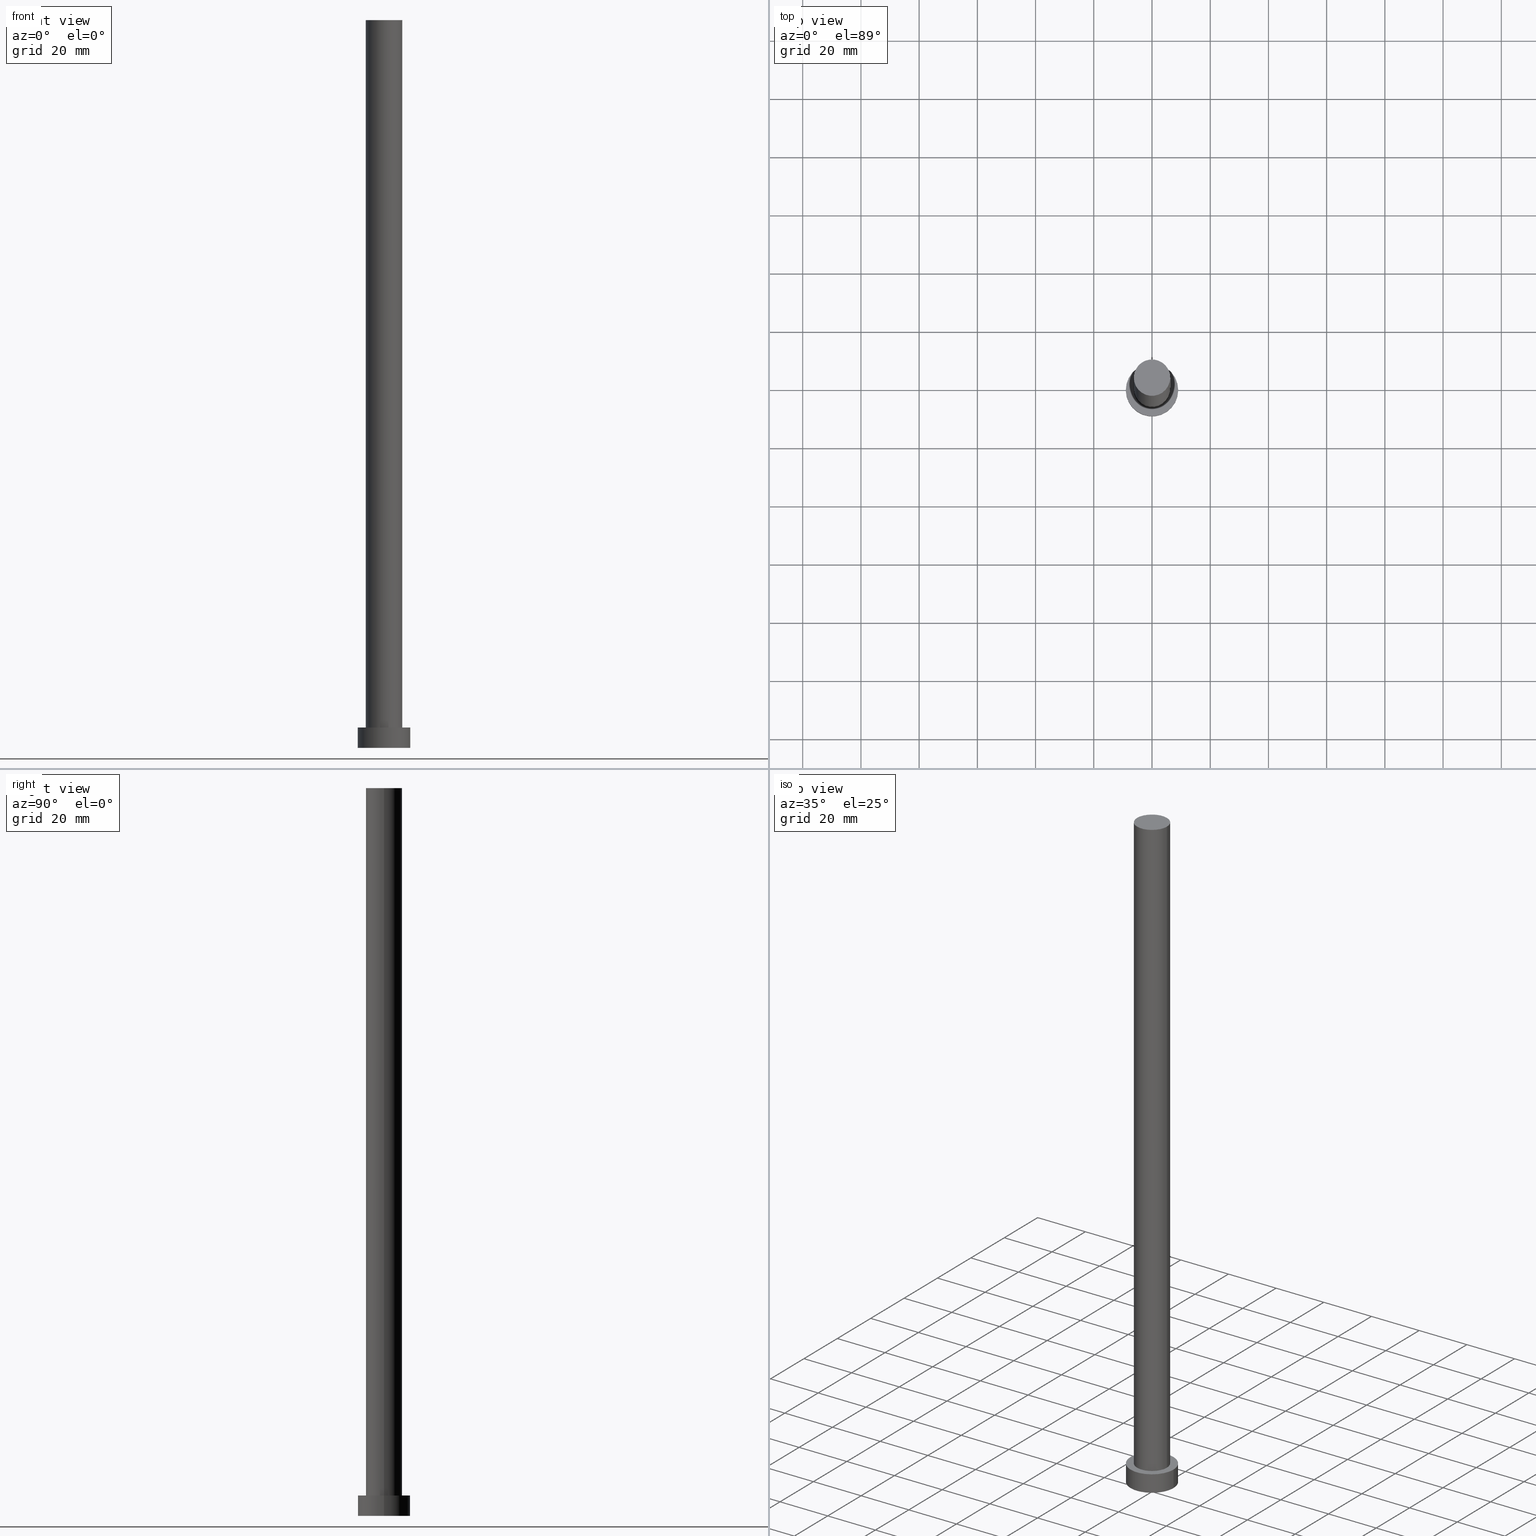
[diagram: canonical four-view strip — front | top / right | iso, engineering-drawing reading convention]
A machine part, canonical four-view strip (front | top / right | iso — engineering-drawing reading convention). The complete STEP part file that produces these views, byte-faithful:
ISO-10303-21;
HEADER;
FILE_DESCRIPTION (( 'STEP AP203' ),
    '1' );
FILE_NAME ('368a.STEP',
    '2026-02-06T12:36:08',
    ( '' ),
    ( '' ),
    'SwSTEP 2.0',
    'SolidWorks 2019',
    '' );
FILE_SCHEMA (( 'CONFIG_CONTROL_DESIGN' ));
ENDSEC;

DATA;
#1 = UNCERTAINTY_MEASURE_WITH_UNIT (LENGTH_MEASURE( 1.000000000000000082E-05 ), #11, 'distance_accuracy_value', 'NONE');
#2 = DIRECTION ( 'NONE',  ( 1.000000000000000000, 0.000000000000000000, -0.000000000000000000 ) ) ;
#3 = CIRCLE ( 'NONE', #203, 6.250000000000000000 ) ;
#4 = CARTESIAN_POINT ( 'NONE',  ( 0.000000000000000000, 0.000000000000000000, 250.0000000000000000 ) ) ;
#5 = PERSON_AND_ORGANIZATION_ROLE ( 'design_owner' ) ;
#6 = CIRCLE ( 'NONE', #246, 6.250000000000000000 ) ;
#7 = DIRECTION ( 'NONE',  ( 0.000000000000000000, 0.000000000000000000, 1.000000000000000000 ) ) ;
#8 = DATE_AND_TIME ( #52, #231 ) ;
#9 = AXIS2_PLACEMENT_3D ( 'NONE', #115, #99, #237 ) ;
#10 = DIRECTION ( 'NONE',  ( -0.000000000000000000, -0.000000000000000000, -1.000000000000000000 ) ) ;
#11 =( LENGTH_UNIT ( ) NAMED_UNIT ( * ) SI_UNIT ( .MILLI., .METRE. ) );
#12 = CARTESIAN_POINT ( 'NONE',  ( 0.000000000000000000, 0.000000000000000000, 7.000000000000000000 ) ) ;
#13 = VERTEX_POINT ( 'NONE', #150 ) ;
#14 = VERTEX_POINT ( 'NONE', #46 ) ;
#15 = COORDINATED_UNIVERSAL_TIME_OFFSET ( 1, 0, .AHEAD. ) ;
#16 = LOCAL_TIME ( 13, 36, 8.000000000000000000, #133 ) ;
#17 = COORDINATED_UNIVERSAL_TIME_OFFSET ( 1, 0, .AHEAD. ) ;
#18 = DIRECTION ( 'NONE',  ( -0.000000000000000000, -0.000000000000000000, -1.000000000000000000 ) ) ;
#19 = ORIENTED_EDGE ( 'NONE', *, *, #202, .F. ) ;
#20 = ADVANCED_FACE ( 'NONE', ( #24 ), #172, .T. ) ;
#21 = ORIENTED_EDGE ( 'NONE', *, *, #223, .F. ) ;
#22 = VECTOR ( 'NONE', #73, 1000.000000000000000 ) ;
#23 = CARTESIAN_POINT ( 'NONE',  ( 0.000000000000000000, 0.000000000000000000, 7.000000000000000000 ) ) ;
#24 = FACE_OUTER_BOUND ( 'NONE', #112, .T. ) ;
#25 = CIRCLE ( 'NONE', #60, 9.000000000000000000 ) ;
#26 = CC_DESIGN_PERSON_AND_ORGANIZATION_ASSIGNMENT ( #228, #113, ( #119 ) ) ;
#27 = ADVANCED_BREP_SHAPE_REPRESENTATION ( '368a', ( #111, #243 ), #198 ) ;
#28 = CIRCLE ( 'NONE', #189, 6.250000000000000000 ) ;
#29 = ADVANCED_FACE ( 'NONE', ( #118 ), #101, .T. ) ;
#30 = PRODUCT_DEFINITION_SHAPE ( 'NONE', 'NONE',  #196 ) ;
#31 = APPLICATION_PROTOCOL_DEFINITION ( 'international standard', 'config_control_design', 1994, #138 ) ;
#32 = CC_DESIGN_APPROVAL ( #53, ( #196 ) ) ;
#33 = ORIENTED_EDGE ( 'NONE', *, *, #181, .T. ) ;
#34 = APPROVAL_STATUS ( 'not_yet_approved' ) ;
#35 = EDGE_CURVE ( 'NONE', #108, #98, #28, .T. ) ;
#36 = AXIS2_PLACEMENT_3D ( 'NONE', #62, #130, #2 ) ;
#37 = EDGE_LOOP ( 'NONE', ( #21, #149, #56, #33 ) ) ;
#38 = APPROVAL_DATE_TIME ( #144, #222 ) ;
#39 = EDGE_LOOP ( 'NONE', ( #248, #245 ) ) ;
#40 = CYLINDRICAL_SURFACE ( 'NONE', #9, 6.250000000000000000 ) ;
#41 = AXIS2_PLACEMENT_3D ( 'NONE', #124, #188, #229 ) ;
#42 = VECTOR ( 'NONE', #249, 1000.000000000000000 ) ;
#43 = DIRECTION ( 'NONE',  ( 1.000000000000000000, 0.000000000000000000, 0.000000000000000000 ) ) ;
#44 = DIRECTION ( 'NONE',  ( 1.000000000000000000, 0.000000000000000000, 0.000000000000000000 ) ) ;
#45 = PERSON_AND_ORGANIZATION_ROLE ( 'creator' ) ;
#46 = CARTESIAN_POINT ( 'NONE',  ( 9.000000000000000000, 1.102182119232617714E-15, 7.000000000000000000 ) ) ;
#47 = APPROVAL_STATUS ( 'not_yet_approved' ) ;
#48 = CIRCLE ( 'NONE', #134, 6.250000000000000000 ) ;
#49 = CARTESIAN_POINT ( 'NONE',  ( 0.000000000000000000, 0.000000000000000000, 0.000000000000000000 ) ) ;
#50 = ADVANCED_FACE ( 'NONE', ( #67, #253 ), #84, .T. ) ;
#51 = CC_DESIGN_SECURITY_CLASSIFICATION ( #64, ( #119 ) ) ;
#52 = CALENDAR_DATE ( 2026, 6, 2 ) ;
#53 = APPROVAL ( #102, 'NEUR�EN�' ) ;
#54 = CARTESIAN_POINT ( 'NONE',  ( 6.250000000000000000, 7.654042494670957606E-16, 7.000000000000000000 ) ) ;
#55 = ORIENTED_EDGE ( 'NONE', *, *, #141, .T. ) ;
#56 = ORIENTED_EDGE ( 'NONE', *, *, #148, .T. ) ;
#57 = ORIENTED_EDGE ( 'NONE', *, *, #35, .T. ) ;
#58 = PERSON_AND_ORGANIZATION ( #159, #227 ) ;
#59 = CARTESIAN_POINT ( 'NONE',  ( 0.000000000000000000, 0.000000000000000000, 7.000000000000000000 ) ) ;
#60 = AXIS2_PLACEMENT_3D ( 'NONE', #23, #195, #194 ) ;
#61 = DIRECTION ( 'NONE',  ( -1.000000000000000000, 0.000000000000000000, 0.000000000000000000 ) ) ;
#62 = CARTESIAN_POINT ( 'NONE',  ( 0.000000000000000000, 0.000000000000000000, 7.000000000000000000 ) ) ;
#63 = DIRECTION ( 'NONE',  ( 0.000000000000000000, 0.000000000000000000, 1.000000000000000000 ) ) ;
#64 = SECURITY_CLASSIFICATION ( '', '', #212 ) ;
#65 = AXIS2_PLACEMENT_3D ( 'NONE', #117, #192, #43 ) ;
#66 = CARTESIAN_POINT ( 'NONE',  ( 0.000000000000000000, 0.000000000000000000, 0.000000000000000000 ) ) ;
#67 = FACE_BOUND ( 'NONE', #210, .T. ) ;
#68 = CALENDAR_DATE ( 2026, 6, 2 ) ;
#69 = EDGE_CURVE ( 'NONE', #233, #171, #173, .T. ) ;
#70 = APPLICATION_PROTOCOL_DEFINITION ( 'international standard', 'config_control_design', 1994, #177 ) ;
#71 = APPROVAL_PERSON_ORGANIZATION ( #221, #53, #120 ) ;
#72 = PLANE ( 'NONE',  #41 ) ;
#73 = DIRECTION ( 'NONE',  ( -0.000000000000000000, -0.000000000000000000, -1.000000000000000000 ) ) ;
#74 = ORIENTED_EDGE ( 'NONE', *, *, #175, .F. ) ;
#75 = ORIENTED_EDGE ( 'NONE', *, *, #148, .F. ) ;
#76 = PERSON_AND_ORGANIZATION ( #159, #227 ) ;
#77 = DIRECTION ( 'NONE',  ( 0.000000000000000000, 0.000000000000000000, 1.000000000000000000 ) ) ;
#78 = PERSON_AND_ORGANIZATION_ROLE ( 'design_supplier' ) ;
#79 = DIRECTION ( 'NONE',  ( 0.000000000000000000, 0.000000000000000000, 1.000000000000000000 ) ) ;
#80 = DESIGN_CONTEXT ( 'detailed design', #177, 'design' ) ;
#81 = EDGE_LOOP ( 'NONE', ( #74, #190, #208, #254 ) ) ;
#82 = CARTESIAN_POINT ( 'NONE',  ( 6.250000000000000000, 7.654042494670957606E-16, 250.0000000000000000 ) ) ;
#83 = CC_DESIGN_PERSON_AND_ORGANIZATION_ASSIGNMENT ( #58, #186, ( #64 ) ) ;
#84 = PLANE ( 'NONE',  #36 ) ;
#85 = CARTESIAN_POINT ( 'NONE',  ( 0.000000000000000000, 0.000000000000000000, 250.0000000000000000 ) ) ;
#86 = EDGE_CURVE ( 'NONE', #14, #217, #204, .T. ) ;
#87 = CALENDAR_DATE ( 2026, 6, 2 ) ;
#88 = COORDINATED_UNIVERSAL_TIME_OFFSET ( 1, 0, .AHEAD. ) ;
#89 = PRODUCT ( '368a', '368a', '', ( #135 ) ) ;
#90 = VECTOR ( 'NONE', #10, 1000.000000000000000 ) ;
#91 = CIRCLE ( 'NONE', #201, 9.000000000000000000 ) ;
#92 = DIRECTION ( 'NONE',  ( -1.000000000000000000, 0.000000000000000000, 0.000000000000000000 ) ) ;
#93 = DIRECTION ( 'NONE',  ( 0.000000000000000000, 0.000000000000000000, 1.000000000000000000 ) ) ;
#94 = CYLINDRICAL_SURFACE ( 'NONE', #140, 9.000000000000000000 ) ;
#95 = CALENDAR_DATE ( 2026, 6, 2 ) ;
#96 = DATE_AND_TIME ( #95, #220 ) ;
#97 = FACE_OUTER_BOUND ( 'NONE', #81, .T. ) ;
#98 = VERTEX_POINT ( 'NONE', #82 ) ;
#99 = DIRECTION ( 'NONE',  ( -0.000000000000000000, -0.000000000000000000, -1.000000000000000000 ) ) ;
#100 = ORIENTED_EDGE ( 'NONE', *, *, #202, .T. ) ;
#101 = PLANE ( 'NONE',  #123 ) ;
#102 = APPROVAL_STATUS ( 'not_yet_approved' ) ;
#103 = APPROVAL_PERSON_ORGANIZATION ( #76, #251, #166 ) ;
#104 = DIRECTION ( 'NONE',  ( 1.000000000000000000, 0.000000000000000000, 0.000000000000000000 ) ) ;
#105 = CYLINDRICAL_SURFACE ( 'NONE', #122, 9.000000000000000000 ) ;
#106 = VECTOR ( 'NONE', #184, 1000.000000000000000 ) ;
#107 = CARTESIAN_POINT ( 'NONE',  ( -9.000000000000000000, 0.000000000000000000, 7.000000000000000000 ) ) ;
#108 = VERTEX_POINT ( 'NONE', #129 ) ;
#109 = CARTESIAN_POINT ( 'NONE',  ( -6.250000000000000000, 0.000000000000000000, 250.0000000000000000 ) ) ;
#110 = ORIENTED_EDGE ( 'NONE', *, *, #181, .F. ) ;
#111 = MANIFOLD_SOLID_BREP ( 'P�idat vysunut�m3', #241 ) ;
#112 = EDGE_LOOP ( 'NONE', ( #19, #185, #143, #75 ) ) ;
#113 = PERSON_AND_ORGANIZATION_ROLE ( 'creator' ) ;
#114 = EDGE_CURVE ( 'NONE', #217, #14, #25, .T. ) ;
#115 = CARTESIAN_POINT ( 'NONE',  ( 0.000000000000000000, 0.000000000000000000, 250.0000000000000000 ) ) ;
#116 = CARTESIAN_POINT ( 'NONE',  ( 0.000000000000000000, 0.000000000000000000, 250.0000000000000000 ) ) ;
#117 = CARTESIAN_POINT ( 'NONE',  ( 0.000000000000000000, 0.000000000000000000, 0.000000000000000000 ) ) ;
#118 = FACE_OUTER_BOUND ( 'NONE', #206, .T. ) ;
#119 = PRODUCT_DEFINITION_FORMATION_WITH_SPECIFIED_SOURCE ( 'LIBOVOLN�', '', #89, .NOT_KNOWN. ) ;
#120 = APPROVAL_ROLE ( '' ) ;
#121 = CC_DESIGN_PERSON_AND_ORGANIZATION_ASSIGNMENT ( #156, #45, ( #196 ) ) ;
#122 = AXIS2_PLACEMENT_3D ( 'NONE', #12, #18, #61 ) ;
#123 = AXIS2_PLACEMENT_3D ( 'NONE', #116, #238, #169 ) ;
#124 = CARTESIAN_POINT ( 'NONE',  ( 0.000000000000000000, 0.000000000000000000, 0.000000000000000000 ) ) ;
#125 = DIRECTION ( 'NONE',  ( 1.000000000000000000, 0.000000000000000000, 0.000000000000000000 ) ) ;
#126 = AXIS2_PLACEMENT_3D ( 'NONE', #153, #63, #155 ) ;
#127 = LINE ( 'NONE', #109, #106 ) ;
#128 = ADVANCED_FACE ( 'NONE', ( #211 ), #40, .T. ) ;
#129 = CARTESIAN_POINT ( 'NONE',  ( -6.250000000000000000, 0.000000000000000000, 250.0000000000000000 ) ) ;
#130 = DIRECTION ( 'NONE',  ( 0.000000000000000000, 0.000000000000000000, 1.000000000000000000 ) ) ;
#131 = DIRECTION ( 'NONE',  ( -0.000000000000000000, -0.000000000000000000, -1.000000000000000000 ) ) ;
#132 = PERSON_AND_ORGANIZATION ( #159, #227 ) ;
#133 = COORDINATED_UNIVERSAL_TIME_OFFSET ( 1, 0, .AHEAD. ) ;
#134 = AXIS2_PLACEMENT_3D ( 'NONE', #191, #77, #125 ) ;
#135 = MECHANICAL_CONTEXT ( 'NONE', #138, 'mechanical' ) ;
#136 = DIRECTION ( 'NONE',  ( 1.000000000000000000, 0.000000000000000000, 0.000000000000000000 ) ) ;
#137 = FACE_OUTER_BOUND ( 'NONE', #146, .T. ) ;
#138 = APPLICATION_CONTEXT ( 'configuration controlled 3d designs of mechanical parts and assemblies' ) ;
#139 = ORIENTED_EDGE ( 'NONE', *, *, #86, .F. ) ;
#140 = AXIS2_PLACEMENT_3D ( 'NONE', #247, #250, #92 ) ;
#141 = EDGE_CURVE ( 'NONE', #171, #233, #91, .T. ) ;
#142 = DIRECTION ( 'NONE',  ( 1.000000000000000000, 0.000000000000000000, 0.000000000000000000 ) ) ;
#143 = ORIENTED_EDGE ( 'NONE', *, *, #242, .T. ) ;
#144 = DATE_AND_TIME ( #170, #154 ) ;
#145 = CC_DESIGN_DATE_AND_TIME_ASSIGNMENT ( #96, #164, ( #64 ) ) ;
#146 = EDGE_LOOP ( 'NONE', ( #139, #183, #55, #163 ) ) ;
#147 = CARTESIAN_POINT ( 'NONE',  ( -9.000000000000000000, 0.000000000000000000, 7.000000000000000000 ) ) ;
#148 = EDGE_CURVE ( 'NONE', #108, #13, #127, .T. ) ;
#149 = ORIENTED_EDGE ( 'NONE', *, *, #35, .F. ) ;
#150 = CARTESIAN_POINT ( 'NONE',  ( -6.250000000000000000, 0.000000000000000000, 7.000000000000000000 ) ) ;
#151 = PERSON_AND_ORGANIZATION ( #159, #227 ) ;
#152 = DIRECTION ( 'NONE',  ( -1.000000000000000000, 0.000000000000000000, 0.000000000000000000 ) ) ;
#153 = CARTESIAN_POINT ( 'NONE',  ( 0.000000000000000000, 0.000000000000000000, 7.000000000000000000 ) ) ;
#154 = LOCAL_TIME ( 13, 36, 8.000000000000000000, #17 ) ;
#155 = DIRECTION ( 'NONE',  ( 1.000000000000000000, 0.000000000000000000, 0.000000000000000000 ) ) ;
#156 = PERSON_AND_ORGANIZATION ( #159, #227 ) ;
#157 = PRODUCT_RELATED_PRODUCT_CATEGORY ( 'detail', '', ( #89 ) ) ;
#158 = SHAPE_DEFINITION_REPRESENTATION ( #30, #27 ) ;
#159 = PERSON ( 'NEUR�EN�', 'NEUR�EN�', 'NEUR�EN�', ('NEUR�EN�'), ('NEUR�EN�'), ('NEUR�EN�') ) ;
#160 = APPROVAL_DATE_TIME ( #8, #251 ) ;
#161 = CARTESIAN_POINT ( 'NONE',  ( -9.000000000000000000, 0.000000000000000000, 0.000000000000000000 ) ) ;
#162 = LOCAL_TIME ( 13, 36, 8.000000000000000000, #88 ) ;
#163 = ORIENTED_EDGE ( 'NONE', *, *, #193, .F. ) ;
#164 = DATE_TIME_ROLE ( 'classification_date' ) ;
#165 = CARTESIAN_POINT ( 'NONE',  ( 9.000000000000000000, 1.102182119232617714E-15, 0.000000000000000000 ) ) ;
#166 = APPROVAL_ROLE ( '' ) ;
#167 = CARTESIAN_POINT ( 'NONE',  ( 0.000000000000000000, 0.000000000000000000, 250.0000000000000000 ) ) ;
#168 = ORIENTED_EDGE ( 'NONE', *, *, #141, .F. ) ;
#169 = DIRECTION ( 'NONE',  ( 1.000000000000000000, 0.000000000000000000, -0.000000000000000000 ) ) ;
#170 = CALENDAR_DATE ( 2026, 6, 2 ) ;
#171 = VERTEX_POINT ( 'NONE', #165 ) ;
#172 = CYLINDRICAL_SURFACE ( 'NONE', #218, 6.250000000000000000 ) ;
#173 = CIRCLE ( 'NONE', #65, 9.000000000000000000 ) ;
#174 = DATE_TIME_ROLE ( 'creation_date' ) ;
#175 = EDGE_CURVE ( 'NONE', #14, #171, #225, .T. ) ;
#176 = PERSON_AND_ORGANIZATION ( #159, #227 ) ;
#177 = APPLICATION_CONTEXT ( 'configuration controlled 3d designs of mechanical parts and assemblies' ) ;
#178 = COORDINATED_UNIVERSAL_TIME_OFFSET ( 1, 0, .AHEAD. ) ;
#179 = CC_DESIGN_APPROVAL ( #251, ( #64 ) ) ;
#180 = LINE ( 'NONE', #209, #90 ) ;
#181 = EDGE_CURVE ( 'NONE', #13, #235, #48, .T. ) ;
#182 = ADVANCED_FACE ( 'NONE', ( #137 ), #105, .T. ) ;
#183 = ORIENTED_EDGE ( 'NONE', *, *, #175, .T. ) ;
#184 = DIRECTION ( 'NONE',  ( -0.000000000000000000, -0.000000000000000000, -1.000000000000000000 ) ) ;
#185 = ORIENTED_EDGE ( 'NONE', *, *, #223, .T. ) ;
#186 = PERSON_AND_ORGANIZATION_ROLE ( 'classification_officer' ) ;
#187 = CC_DESIGN_PERSON_AND_ORGANIZATION_ASSIGNMENT ( #176, #5, ( #89 ) ) ;
#188 = DIRECTION ( 'NONE',  ( 0.000000000000000000, 0.000000000000000000, 1.000000000000000000 ) ) ;
#189 = AXIS2_PLACEMENT_3D ( 'NONE', #4, #234, #213 ) ;
#190 = ORIENTED_EDGE ( 'NONE', *, *, #114, .F. ) ;
#191 = CARTESIAN_POINT ( 'NONE',  ( 0.000000000000000000, 0.000000000000000000, 7.000000000000000000 ) ) ;
#192 = DIRECTION ( 'NONE',  ( 0.000000000000000000, 0.000000000000000000, 1.000000000000000000 ) ) ;
#193 = EDGE_CURVE ( 'NONE', #217, #233, #207, .T. ) ;
#194 = DIRECTION ( 'NONE',  ( 1.000000000000000000, 0.000000000000000000, 0.000000000000000000 ) ) ;
#195 = DIRECTION ( 'NONE',  ( 0.000000000000000000, 0.000000000000000000, 1.000000000000000000 ) ) ;
#196 = PRODUCT_DEFINITION ( 'NEZN�M�', '', #119, #80 ) ;
#197 = DATE_AND_TIME ( #68, #162 ) ;
#198 =( GEOMETRIC_REPRESENTATION_CONTEXT ( 3 ) GLOBAL_UNCERTAINTY_ASSIGNED_CONTEXT ( ( #1 ) ) GLOBAL_UNIT_ASSIGNED_CONTEXT ( ( #11, #224, #205 ) ) REPRESENTATION_CONTEXT ( 'NONE', 'WORKASPACE' ) );
#199 = ADVANCED_FACE ( 'NONE', ( #97 ), #94, .T. ) ;
#200 = CC_DESIGN_APPROVAL ( #222, ( #119 ) ) ;
#201 = AXIS2_PLACEMENT_3D ( 'NONE', #66, #214, #44 ) ;
#202 = EDGE_CURVE ( 'NONE', #98, #108, #6, .T. ) ;
#203 = AXIS2_PLACEMENT_3D ( 'NONE', #59, #93, #136 ) ;
#204 = CIRCLE ( 'NONE', #126, 9.000000000000000000 ) ;
#205 =( NAMED_UNIT ( * ) SI_UNIT ( $, .STERADIAN. ) SOLID_ANGLE_UNIT ( ) );
#206 = EDGE_LOOP ( 'NONE', ( #57, #100 ) ) ;
#207 = LINE ( 'NONE', #107, #22 ) ;
#208 = ORIENTED_EDGE ( 'NONE', *, *, #193, .T. ) ;
#209 = CARTESIAN_POINT ( 'NONE',  ( 6.250000000000000000, 7.654042494670957606E-16, 250.0000000000000000 ) ) ;
#210 = EDGE_LOOP ( 'NONE', ( #110, #252 ) ) ;
#211 = FACE_OUTER_BOUND ( 'NONE', #37, .T. ) ;
#212 = SECURITY_CLASSIFICATION_LEVEL ( 'unclassified' ) ;
#213 = DIRECTION ( 'NONE',  ( 1.000000000000000000, 0.000000000000000000, 0.000000000000000000 ) ) ;
#214 = DIRECTION ( 'NONE',  ( 0.000000000000000000, 0.000000000000000000, 1.000000000000000000 ) ) ;
#215 = CC_DESIGN_DATE_AND_TIME_ASSIGNMENT ( #197, #174, ( #196 ) ) ;
#216 = DATE_AND_TIME ( #87, #16 ) ;
#217 = VERTEX_POINT ( 'NONE', #147 ) ;
#218 = AXIS2_PLACEMENT_3D ( 'NONE', #85, #131, #152 ) ;
#219 = APPROVAL_ROLE ( '' ) ;
#220 = LOCAL_TIME ( 13, 36, 8.000000000000000000, #15 ) ;
#221 = PERSON_AND_ORGANIZATION ( #159, #227 ) ;
#222 = APPROVAL ( #47, 'NEUR�EN�' ) ;
#223 = EDGE_CURVE ( 'NONE', #98, #235, #180, .T. ) ;
#224 =( NAMED_UNIT ( * ) PLANE_ANGLE_UNIT ( ) SI_UNIT ( $, .RADIAN. ) );
#225 = LINE ( 'NONE', #232, #42 ) ;
#226 = ORIENTED_EDGE ( 'NONE', *, *, #69, .F. ) ;
#227 = ORGANIZATION ( 'NEUR�EN�', 'NEUR�EN�', '' ) ;
#228 = PERSON_AND_ORGANIZATION ( #159, #227 ) ;
#229 = DIRECTION ( 'NONE',  ( 1.000000000000000000, 0.000000000000000000, -0.000000000000000000 ) ) ;
#230 = EDGE_LOOP ( 'NONE', ( #226, #168 ) ) ;
#231 = LOCAL_TIME ( 13, 36, 8.000000000000000000, #178 ) ;
#232 = CARTESIAN_POINT ( 'NONE',  ( 9.000000000000000000, 1.102182119232617714E-15, 7.000000000000000000 ) ) ;
#233 = VERTEX_POINT ( 'NONE', #161 ) ;
#234 = DIRECTION ( 'NONE',  ( 0.000000000000000000, 0.000000000000000000, 1.000000000000000000 ) ) ;
#235 = VERTEX_POINT ( 'NONE', #54 ) ;
#236 = APPROVAL_PERSON_ORGANIZATION ( #132, #222, #219 ) ;
#237 = DIRECTION ( 'NONE',  ( -1.000000000000000000, 0.000000000000000000, 0.000000000000000000 ) ) ;
#238 = DIRECTION ( 'NONE',  ( 0.000000000000000000, 0.000000000000000000, 1.000000000000000000 ) ) ;
#239 = APPROVAL_DATE_TIME ( #216, #53 ) ;
#240 = ADVANCED_FACE ( 'NONE', ( #244 ), #72, .F. ) ;
#241 = CLOSED_SHELL ( 'NONE', ( #20, #182, #199, #50, #240, #128, #29 ) ) ;
#242 = EDGE_CURVE ( 'NONE', #235, #13, #3, .T. ) ;
#243 = AXIS2_PLACEMENT_3D ( 'NONE', #49, #7, #104 ) ;
#244 = FACE_OUTER_BOUND ( 'NONE', #230, .T. ) ;
#245 = ORIENTED_EDGE ( 'NONE', *, *, #86, .T. ) ;
#246 = AXIS2_PLACEMENT_3D ( 'NONE', #167, #79, #142 ) ;
#247 = CARTESIAN_POINT ( 'NONE',  ( 0.000000000000000000, 0.000000000000000000, 7.000000000000000000 ) ) ;
#248 = ORIENTED_EDGE ( 'NONE', *, *, #114, .T. ) ;
#249 = DIRECTION ( 'NONE',  ( -0.000000000000000000, -0.000000000000000000, -1.000000000000000000 ) ) ;
#250 = DIRECTION ( 'NONE',  ( -0.000000000000000000, -0.000000000000000000, -1.000000000000000000 ) ) ;
#251 = APPROVAL ( #34, 'NEUR�EN�' ) ;
#252 = ORIENTED_EDGE ( 'NONE', *, *, #242, .F. ) ;
#253 = FACE_OUTER_BOUND ( 'NONE', #39, .T. ) ;
#254 = ORIENTED_EDGE ( 'NONE', *, *, #69, .T. ) ;
#255 = CC_DESIGN_PERSON_AND_ORGANIZATION_ASSIGNMENT ( #151, #78, ( #119 ) ) ;
ENDSEC;
END-ISO-10303-21;
